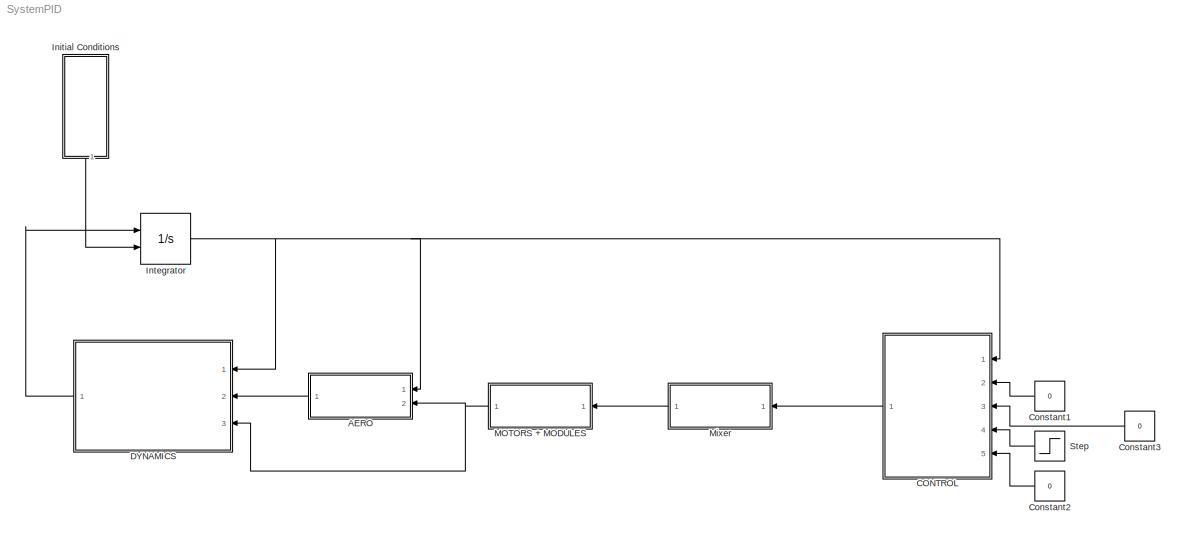
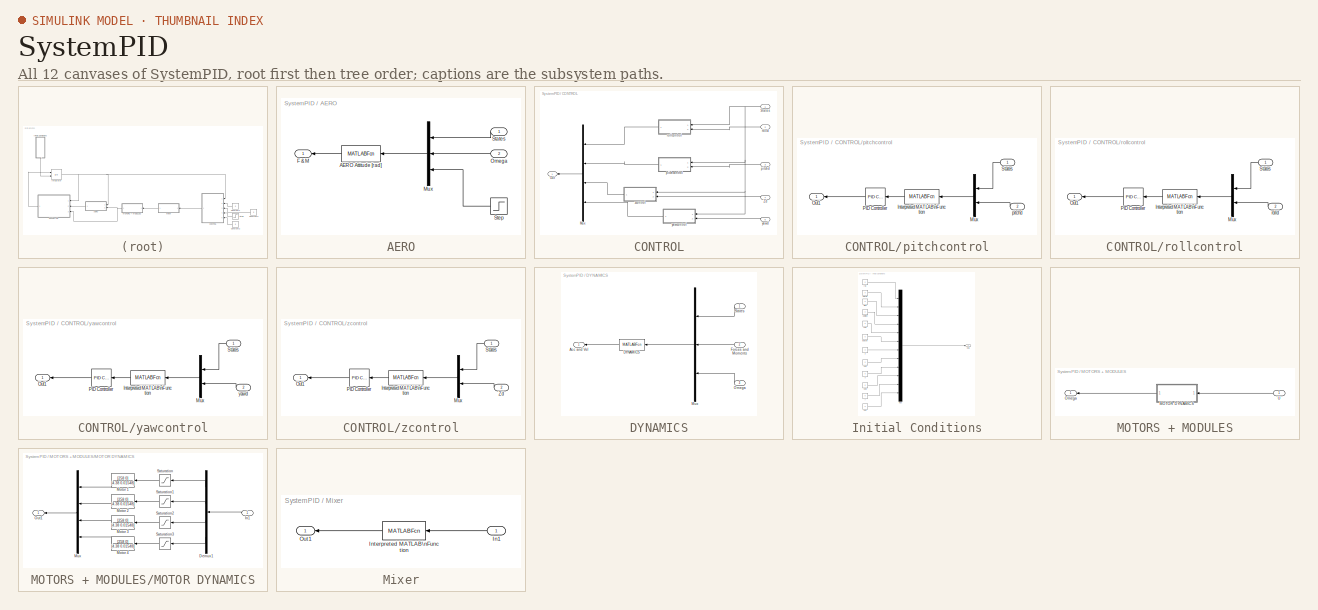
[diagram: thumbnail index - all 12 canvases of the model, root first then tree order]
MODEL SystemPID
KIND model
BLOCK [SubSystem] AERO
  FunctionWithSeparateData = off
  MaskHideContents = off
  MinAlgLoopOccurrences = off
  Opaque = off
  Ports = [2, 1]
  PropExecContextOutsideSubsystem = off
  RTWSystemCode = Auto
  RequestExecContextInheritance = off
  SID = 9
BLOCK [MATLABFcn] AERO/AERO Attitude [rad]
  MATLABFcn = aero
  OutputDimensions = 24
  Ports = [1, 1]
  SID = 17
BLOCK [Outport] AERO/F & M
  IconDisplay = Port number
  SID = 18
BLOCK [Mux] AERO/Mux
  DisplayOption = bar
  Inputs = 3
  Ports = [3, 1]
  SID = 12
BLOCK [Inport] AERO/Omega
  IconDisplay = Port number
  Port = 2
  SID = 14
BLOCK [Inport] AERO/States
  IconDisplay = Port number
  SID = 13
BLOCK [Step] AERO/Step
  SID = 15
  SampleTime = 0
BLOCK [SubSystem] CONTROL
  FunctionWithSeparateData = off
  MaskHideContents = off
  MinAlgLoopOccurrences = off
  Opaque = off
  Ports = [5, 1]
  PropExecContextOutsideSubsystem = off
  RTWSystemCode = Auto
  RequestExecContextInheritance = off
  SID = 29
BLOCK [Mux] CONTROL/Mux
  DisplayOption = bar
  Ports = [4, 1]
  SID = 102
BLOCK [Outport] CONTROL/Out
  IconDisplay = Port number
  SID = 101
BLOCK [Inport] CONTROL/States
  IconDisplay = Port number
  SID = 32
BLOCK [Inport] CONTROL/Zd
  IconDisplay = Port number
  Port = 4
  SID = 35
BLOCK [SubSystem] CONTROL/pitchcontrol
  FunctionWithSeparateData = off
  MaskHideContents = off
  MinAlgLoopOccurrences = off
  Opaque = off
  Ports = [2, 1]
  PropExecContextOutsideSubsystem = off
  RTWSystemCode = Auto
  RequestExecContextInheritance = off
  SID = 80
BLOCK [MATLABFcn] CONTROL/pitchcontrol/Interpreted MATLAB\nFunction
  MATLABFcn = pitcherr
  OutputDimensions = 1
  Ports = [1, 1]
  SID = 83
BLOCK [Mux] CONTROL/pitchcontrol/Mux
  DisplayOption = bar
  Inputs = 2
  Ports = [2, 1]
  SID = 84
BLOCK [Outport] CONTROL/pitchcontrol/Out1
  IconDisplay = Port number
  SID = 86
BLOCK [Reference] CONTROL/pitchcontrol/PID Controller  REF=simulink/Continuous/PID Controller
  AntiWindupMode = none
  Controller = PID
  D = 0
  DOutDataTypeStr = Inherit: Inherit via internal rule
  DOutMax = []
  DOutMin = []
  DParamDataTypeStr = Inherit: Inherit via internal rule
  DParamMax = []
  DParamMin = []
  ExternalReset = none
  FilterContinuousStateAttributes = ''
  FilterMethod = Forward Euler
  FilterOutDataTypeStr = Inherit: Inherit via internal rule
  FilterOutMax = []
  FilterOutMin = []
  FilterRTWStateStorageClass = Auto
  FilterStateMustResolveToSignalObject = off
  Form = Parallel
  FunctionWithSeparateData = off
  GeneratePreprocessorConditionals = off
  I = 1
  IOutDataTypeStr = Inherit: Inherit via internal rule
  IOutMax = []
  IOutMin = []
  IParamDataTypeStr = Inherit: Inherit via internal rule
  IParamMax = []
  IParamMin = []
  IgnoreLimit = off
  InitialConditionForFilter = 0
  InitialConditionForIntegrator = 0
  InitialConditionSource = internal
  IntegratorContinuousStateAttributes = ''
  IntegratorMethod = Forward Euler
  IntegratorOutDataTypeStr = Inherit: Inherit via internal rule
  IntegratorOutMax = []
  IntegratorOutMin = []
  IntegratorRTWStateStorageClass = Auto
  IntegratorStateMustResolveToSignalObject = off
  Kb = 1
  KbOutDataTypeStr = Inherit: Inherit via internal rule
  KbOutMax = []
  KbOutMin = []
  KbParamDataTypeStr = Inherit: Inherit via internal rule
  KbParamMax = []
  KbParamMin = []
  Kt = 1
  KtOutDataTypeStr = Inherit: Inherit via internal rule
  KtOutMax = []
  KtOutMin = []
  KtParamDataTypeStr = Inherit: Inherit via internal rule
  KtParamMax = []
  KtParamMin = []
  LimitOutput = off
  LinearizeAsGain = off
  LockScale = off
  LowerSaturationLimit = -inf
  N = 100
  NOutDataTypeStr = Inherit: Inherit via internal rule
  NOutMax = []
  NOutMin = []
  NParamDataTypeStr = Inherit: Inherit via internal rule
  NParamMax = []
  NParamMin = []
  P = 1
  POutDataTypeStr = Inherit: Inherit via internal rule
  POutMax = []
  POutMin = []
  PParamDataTypeStr = Inherit: Inherit via internal rule
  PParamMax = []
  PParamMin = []
  Ports = [1, 1]
  RTWMemSecDataConstants = Inherit from model
  RTWMemSecDataInternal = Inherit from model
  RTWMemSecDataParameters = Inherit from model
  RTWMemSecFuncExecute = Inherit from model
  RTWMemSecFuncInitTerm = Inherit from model
  RndMeth = Floor
  SID = 85
  SampleTime = 1
  SaturateOnIntegerOverflow = off
  SaturationOutDataTypeStr = Inherit: Same as input
  SaturationOutMax = []
  SaturationOutMin = []
  ShowPortLabels = FromPortIcon
  SourceBlock = simulink/Continuous/PID Controller
  SourceType = PID 1dof
  SumAccumDataTypeStr = Inherit: Inherit via internal rule
  SumDAccumDataTypeStr = Inherit: Inherit via internal rule
  SumDOutDataTypeStr = Inherit: Inherit via internal rule
  SumDOutMax = []
  SumDOutMin = []
  SumI1AccumDataTypeStr = Inherit: Inherit via internal rule
  SumI1OutDataTypeStr = Inherit: Inherit via internal rule
  SumI1OutMax = []
  SumI1OutMin = []
  SumI2AccumDataTypeStr = Inherit: Inherit via internal rule
  SumI2OutDataTypeStr = Inherit: Inherit via internal rule
  SumI2OutMax = []
  SumI2OutMin = []
  SumI3AccumDataTypeStr = Inherit: Inherit via internal rule
  SumI3OutDataTypeStr = Inherit: Inherit via internal rule
  SumI3OutMax = []
  SumI3OutMin = []
  SumOutDataTypeStr = Inherit: Inherit via internal rule
  SumOutMax = []
  SumOutMin = []
  SystemSampleTime = -1
  TimeDomain = Continuous-time
  TrackingMode = off
  UpperSaturationLimit = inf
  ZeroCross = on
BLOCK [Inport] CONTROL/pitchcontrol/States
  IconDisplay = Port number
  SID = 81
BLOCK [Inport] CONTROL/pitchcontrol/pitchd
  IconDisplay = Port number
  Port = 2
  SID = 82
BLOCK [Inport] CONTROL/pitchd
  IconDisplay = Port number
  Port = 3
  SID = 34
BLOCK [SubSystem] CONTROL/rollcontrol
  FunctionWithSeparateData = off
  MaskHideContents = off
  MinAlgLoopOccurrences = off
  Opaque = off
  Ports = [2, 1]
  PropExecContextOutsideSubsystem = off
  RTWSystemCode = Auto
  RequestExecContextInheritance = off
  SID = 73
BLOCK [MATLABFcn] CONTROL/rollcontrol/Interpreted MATLAB\nFunction
  MATLABFcn = rollerr
  OutputDimensions = 1
  Ports = [1, 1]
  SID = 77
BLOCK [Mux] CONTROL/rollcontrol/Mux
  DisplayOption = bar
  Inputs = 2
  Ports = [2, 1]
  SID = 78
BLOCK [Outport] CONTROL/rollcontrol/Out1
  IconDisplay = Port number
  SID = 75
BLOCK [Reference] CONTROL/rollcontrol/PID Controller  REF=simulink/Continuous/PID Controller
  AntiWindupMode = none
  Controller = PID
  D = 0
  DOutDataTypeStr = Inherit: Inherit via internal rule
  DOutMax = []
  DOutMin = []
  DParamDataTypeStr = Inherit: Inherit via internal rule
  DParamMax = []
  DParamMin = []
  ExternalReset = none
  FilterContinuousStateAttributes = ''
  FilterMethod = Forward Euler
  FilterOutDataTypeStr = Inherit: Inherit via internal rule
  FilterOutMax = []
  FilterOutMin = []
  FilterRTWStateStorageClass = Auto
  FilterStateMustResolveToSignalObject = off
  Form = Parallel
  FunctionWithSeparateData = off
  GeneratePreprocessorConditionals = off
  I = 1
  IOutDataTypeStr = Inherit: Inherit via internal rule
  IOutMax = []
  IOutMin = []
  IParamDataTypeStr = Inherit: Inherit via internal rule
  IParamMax = []
  IParamMin = []
  IgnoreLimit = off
  InitialConditionForFilter = 0
  InitialConditionForIntegrator = 0
  InitialConditionSource = internal
  IntegratorContinuousStateAttributes = ''
  IntegratorMethod = Forward Euler
  IntegratorOutDataTypeStr = Inherit: Inherit via internal rule
  IntegratorOutMax = []
  IntegratorOutMin = []
  IntegratorRTWStateStorageClass = Auto
  IntegratorStateMustResolveToSignalObject = off
  Kb = 1
  KbOutDataTypeStr = Inherit: Inherit via internal rule
  KbOutMax = []
  KbOutMin = []
  KbParamDataTypeStr = Inherit: Inherit via internal rule
  KbParamMax = []
  KbParamMin = []
  Kt = 1
  KtOutDataTypeStr = Inherit: Inherit via internal rule
  KtOutMax = []
  KtOutMin = []
  KtParamDataTypeStr = Inherit: Inherit via internal rule
  KtParamMax = []
  KtParamMin = []
  LimitOutput = off
  LinearizeAsGain = off
  LockScale = off
  LowerSaturationLimit = -inf
  N = 100
  NOutDataTypeStr = Inherit: Inherit via internal rule
  NOutMax = []
  NOutMin = []
  NParamDataTypeStr = Inherit: Inherit via internal rule
  NParamMax = []
  NParamMin = []
  P = 1
  POutDataTypeStr = Inherit: Inherit via internal rule
  POutMax = []
  POutMin = []
  PParamDataTypeStr = Inherit: Inherit via internal rule
  PParamMax = []
  PParamMin = []
  Ports = [1, 1]
  RTWMemSecDataConstants = Inherit from model
  RTWMemSecDataInternal = Inherit from model
  RTWMemSecDataParameters = Inherit from model
  RTWMemSecFuncExecute = Inherit from model
  RTWMemSecFuncInitTerm = Inherit from model
  RndMeth = Floor
  SID = 79
  SampleTime = 1
  SaturateOnIntegerOverflow = off
  SaturationOutDataTypeStr = Inherit: Same as input
  SaturationOutMax = []
  SaturationOutMin = []
  ShowPortLabels = FromPortIcon
  SourceBlock = simulink/Continuous/PID Controller
  SourceType = PID 1dof
  SumAccumDataTypeStr = Inherit: Inherit via internal rule
  SumDAccumDataTypeStr = Inherit: Inherit via internal rule
  SumDOutDataTypeStr = Inherit: Inherit via internal rule
  SumDOutMax = []
  SumDOutMin = []
  SumI1AccumDataTypeStr = Inherit: Inherit via internal rule
  SumI1OutDataTypeStr = Inherit: Inherit via internal rule
  SumI1OutMax = []
  SumI1OutMin = []
  SumI2AccumDataTypeStr = Inherit: Inherit via internal rule
  SumI2OutDataTypeStr = Inherit: Inherit via internal rule
  SumI2OutMax = []
  SumI2OutMin = []
  SumI3AccumDataTypeStr = Inherit: Inherit via internal rule
  SumI3OutDataTypeStr = Inherit: Inherit via internal rule
  SumI3OutMax = []
  SumI3OutMin = []
  SumOutDataTypeStr = Inherit: Inherit via internal rule
  SumOutMax = []
  SumOutMin = []
  SystemSampleTime = -1
  TimeDomain = Continuous-time
  TrackingMode = off
  UpperSaturationLimit = inf
  ZeroCross = on
BLOCK [Inport] CONTROL/rollcontrol/States
  IconDisplay = Port number
  SID = 74
BLOCK [Inport] CONTROL/rollcontrol/rolld
  IconDisplay = Port number
  Port = 2
  SID = 76
BLOCK [Inport] CONTROL/rolld
  IconDisplay = Port number
  Port = 2
  SID = 33
BLOCK [SubSystem] CONTROL/yawcontrol
  FunctionWithSeparateData = off
  MaskHideContents = off
  MinAlgLoopOccurrences = off
  Opaque = off
  Ports = [2, 1]
  PropExecContextOutsideSubsystem = off
  RTWSystemCode = Auto
  RequestExecContextInheritance = off
  SID = 87
BLOCK [MATLABFcn] CONTROL/yawcontrol/Interpreted MATLAB\nFunction
  MATLABFcn = yawerr
  OutputDimensions = 1
  Ports = [1, 1]
  SID = 90
BLOCK [Mux] CONTROL/yawcontrol/Mux
  DisplayOption = bar
  Inputs = 2
  Ports = [2, 1]
  SID = 91
BLOCK [Outport] CONTROL/yawcontrol/Out1
  IconDisplay = Port number
  SID = 93
BLOCK [Reference] CONTROL/yawcontrol/PID Controller  REF=simulink/Continuous/PID Controller
  AntiWindupMode = none
  Controller = PID
  D = 0
  DOutDataTypeStr = Inherit: Inherit via internal rule
  DOutMax = []
  DOutMin = []
  DParamDataTypeStr = Inherit: Inherit via internal rule
  DParamMax = []
  DParamMin = []
  ExternalReset = none
  FilterContinuousStateAttributes = ''
  FilterMethod = Forward Euler
  FilterOutDataTypeStr = Inherit: Inherit via internal rule
  FilterOutMax = []
  FilterOutMin = []
  FilterRTWStateStorageClass = Auto
  FilterStateMustResolveToSignalObject = off
  Form = Parallel
  FunctionWithSeparateData = off
  GeneratePreprocessorConditionals = off
  I = 1
  IOutDataTypeStr = Inherit: Inherit via internal rule
  IOutMax = []
  IOutMin = []
  IParamDataTypeStr = Inherit: Inherit via internal rule
  IParamMax = []
  IParamMin = []
  IgnoreLimit = off
  InitialConditionForFilter = 0
  InitialConditionForIntegrator = 0
  InitialConditionSource = internal
  IntegratorContinuousStateAttributes = ''
  IntegratorMethod = Forward Euler
  IntegratorOutDataTypeStr = Inherit: Inherit via internal rule
  IntegratorOutMax = []
  IntegratorOutMin = []
  IntegratorRTWStateStorageClass = Auto
  IntegratorStateMustResolveToSignalObject = off
  Kb = 1
  KbOutDataTypeStr = Inherit: Inherit via internal rule
  KbOutMax = []
  KbOutMin = []
  KbParamDataTypeStr = Inherit: Inherit via internal rule
  KbParamMax = []
  KbParamMin = []
  Kt = 1
  KtOutDataTypeStr = Inherit: Inherit via internal rule
  KtOutMax = []
  KtOutMin = []
  KtParamDataTypeStr = Inherit: Inherit via internal rule
  KtParamMax = []
  KtParamMin = []
  LimitOutput = off
  LinearizeAsGain = off
  LockScale = off
  LowerSaturationLimit = -inf
  N = 100
  NOutDataTypeStr = Inherit: Inherit via internal rule
  NOutMax = []
  NOutMin = []
  NParamDataTypeStr = Inherit: Inherit via internal rule
  NParamMax = []
  NParamMin = []
  P = 1
  POutDataTypeStr = Inherit: Inherit via internal rule
  POutMax = []
  POutMin = []
  PParamDataTypeStr = Inherit: Inherit via internal rule
  PParamMax = []
  PParamMin = []
  Ports = [1, 1]
  RTWMemSecDataConstants = Inherit from model
  RTWMemSecDataInternal = Inherit from model
  RTWMemSecDataParameters = Inherit from model
  RTWMemSecFuncExecute = Inherit from model
  RTWMemSecFuncInitTerm = Inherit from model
  RndMeth = Floor
  SID = 92
  SampleTime = 1
  SaturateOnIntegerOverflow = off
  SaturationOutDataTypeStr = Inherit: Same as input
  SaturationOutMax = []
  SaturationOutMin = []
  ShowPortLabels = FromPortIcon
  SourceBlock = simulink/Continuous/PID Controller
  SourceType = PID 1dof
  SumAccumDataTypeStr = Inherit: Inherit via internal rule
  SumDAccumDataTypeStr = Inherit: Inherit via internal rule
  SumDOutDataTypeStr = Inherit: Inherit via internal rule
  SumDOutMax = []
  SumDOutMin = []
  SumI1AccumDataTypeStr = Inherit: Inherit via internal rule
  SumI1OutDataTypeStr = Inherit: Inherit via internal rule
  SumI1OutMax = []
  SumI1OutMin = []
  SumI2AccumDataTypeStr = Inherit: Inherit via internal rule
  SumI2OutDataTypeStr = Inherit: Inherit via internal rule
  SumI2OutMax = []
  SumI2OutMin = []
  SumI3AccumDataTypeStr = Inherit: Inherit via internal rule
  SumI3OutDataTypeStr = Inherit: Inherit via internal rule
  SumI3OutMax = []
  SumI3OutMin = []
  SumOutDataTypeStr = Inherit: Inherit via internal rule
  SumOutMax = []
  SumOutMin = []
  SystemSampleTime = -1
  TimeDomain = Continuous-time
  TrackingMode = off
  UpperSaturationLimit = inf
  ZeroCross = on
BLOCK [Inport] CONTROL/yawcontrol/States
  IconDisplay = Port number
  SID = 88
BLOCK [Inport] CONTROL/yawcontrol/yawd
  IconDisplay = Port number
  Port = 2
  SID = 89
BLOCK [Inport] CONTROL/yawd
  IconDisplay = Port number
  Port = 5
  SID = 36
BLOCK [SubSystem] CONTROL/zcontrol
  FunctionWithSeparateData = off
  MaskHideContents = off
  MinAlgLoopOccurrences = off
  Opaque = off
  Ports = [2, 1]
  PropExecContextOutsideSubsystem = off
  RTWSystemCode = Auto
  RequestExecContextInheritance = off
  SID = 94
BLOCK [MATLABFcn] CONTROL/zcontrol/Interpreted MATLAB\nFunction
  MATLABFcn = zerr
  OutputDimensions = 1
  Ports = [1, 1]
  SID = 97
BLOCK [Mux] CONTROL/zcontrol/Mux
  DisplayOption = bar
  Inputs = 2
  Ports = [2, 1]
  SID = 98
BLOCK [Outport] CONTROL/zcontrol/Out1
  IconDisplay = Port number
  SID = 100
BLOCK [Reference] CONTROL/zcontrol/PID Controller  REF=simulink/Continuous/PID Controller
  AntiWindupMode = none
  Controller = PID
  D = 0
  DOutDataTypeStr = Inherit: Inherit via internal rule
  DOutMax = []
  DOutMin = []
  DParamDataTypeStr = Inherit: Inherit via internal rule
  DParamMax = []
  DParamMin = []
  ExternalReset = none
  FilterContinuousStateAttributes = ''
  FilterMethod = Forward Euler
  FilterOutDataTypeStr = Inherit: Inherit via internal rule
  FilterOutMax = []
  FilterOutMin = []
  FilterRTWStateStorageClass = Auto
  FilterStateMustResolveToSignalObject = off
  Form = Parallel
  FunctionWithSeparateData = off
  GeneratePreprocessorConditionals = off
  I = 1
  IOutDataTypeStr = Inherit: Inherit via internal rule
  IOutMax = []
  IOutMin = []
  IParamDataTypeStr = Inherit: Inherit via internal rule
  IParamMax = []
  IParamMin = []
  IgnoreLimit = off
  InitialConditionForFilter = 0
  InitialConditionForIntegrator = 0
  InitialConditionSource = internal
  IntegratorContinuousStateAttributes = ''
  IntegratorMethod = Forward Euler
  IntegratorOutDataTypeStr = Inherit: Inherit via internal rule
  IntegratorOutMax = []
  IntegratorOutMin = []
  IntegratorRTWStateStorageClass = Auto
  IntegratorStateMustResolveToSignalObject = off
  Kb = 1
  KbOutDataTypeStr = Inherit: Inherit via internal rule
  KbOutMax = []
  KbOutMin = []
  KbParamDataTypeStr = Inherit: Inherit via internal rule
  KbParamMax = []
  KbParamMin = []
  Kt = 1
  KtOutDataTypeStr = Inherit: Inherit via internal rule
  KtOutMax = []
  KtOutMin = []
  KtParamDataTypeStr = Inherit: Inherit via internal rule
  KtParamMax = []
  KtParamMin = []
  LimitOutput = off
  LinearizeAsGain = off
  LockScale = off
  LowerSaturationLimit = -inf
  N = 100
  NOutDataTypeStr = Inherit: Inherit via internal rule
  NOutMax = []
  NOutMin = []
  NParamDataTypeStr = Inherit: Inherit via internal rule
  NParamMax = []
  NParamMin = []
  P = 1
  POutDataTypeStr = Inherit: Inherit via internal rule
  POutMax = []
  POutMin = []
  PParamDataTypeStr = Inherit: Inherit via internal rule
  PParamMax = []
  PParamMin = []
  Ports = [1, 1]
  RTWMemSecDataConstants = Inherit from model
  RTWMemSecDataInternal = Inherit from model
  RTWMemSecDataParameters = Inherit from model
  RTWMemSecFuncExecute = Inherit from model
  RTWMemSecFuncInitTerm = Inherit from model
  RndMeth = Floor
  SID = 99
  SampleTime = 1
  SaturateOnIntegerOverflow = off
  SaturationOutDataTypeStr = Inherit: Same as input
  SaturationOutMax = []
  SaturationOutMin = []
  ShowPortLabels = FromPortIcon
  SourceBlock = simulink/Continuous/PID Controller
  SourceType = PID 1dof
  SumAccumDataTypeStr = Inherit: Inherit via internal rule
  SumDAccumDataTypeStr = Inherit: Inherit via internal rule
  SumDOutDataTypeStr = Inherit: Inherit via internal rule
  SumDOutMax = []
  SumDOutMin = []
  SumI1AccumDataTypeStr = Inherit: Inherit via internal rule
  SumI1OutDataTypeStr = Inherit: Inherit via internal rule
  SumI1OutMax = []
  SumI1OutMin = []
  SumI2AccumDataTypeStr = Inherit: Inherit via internal rule
  SumI2OutDataTypeStr = Inherit: Inherit via internal rule
  SumI2OutMax = []
  SumI2OutMin = []
  SumI3AccumDataTypeStr = Inherit: Inherit via internal rule
  SumI3OutDataTypeStr = Inherit: Inherit via internal rule
  SumI3OutMax = []
  SumI3OutMin = []
  SumOutDataTypeStr = Inherit: Inherit via internal rule
  SumOutMax = []
  SumOutMin = []
  SystemSampleTime = -1
  TimeDomain = Continuous-time
  TrackingMode = off
  UpperSaturationLimit = inf
  ZeroCross = on
BLOCK [Inport] CONTROL/zcontrol/States
  IconDisplay = Port number
  SID = 95
BLOCK [Inport] CONTROL/zcontrol/Zd
  IconDisplay = Port number
  Port = 2
  SID = 96
BLOCK [Constant] Constant1
  SID = 40
  Value = 0
BLOCK [Constant] Constant2
  SID = 41
  Value = 0
BLOCK [Constant] Constant3
  SID = 42
  Value = 0
BLOCK [SubSystem] DYNAMICS
  FunctionWithSeparateData = off
  MaskHideContents = off
  MinAlgLoopOccurrences = off
  Opaque = off
  Ports = [3, 1]
  PropExecContextOutsideSubsystem = off
  RTWSystemCode = Auto
  RequestExecContextInheritance = off
  SID = 1
BLOCK [Outport] DYNAMICS/Acc and Vel
  IconDisplay = Port number
  SID = 3
BLOCK [MATLABFcn] DYNAMICS/DYNAMICS
  MATLABFcn = plantdynamics
  OutputDimensions = 18
  Ports = [1, 1]
  SID = 8
BLOCK [Inport] DYNAMICS/Forces and Moments
  IconDisplay = Port number
  Port = 2
  SID = 6
BLOCK [Mux] DYNAMICS/Mux
  DisplayOption = bar
  Inputs = 3
  Ports = [3, 1]
  SID = 4
BLOCK [Inport] DYNAMICS/Omega
  IconDisplay = Port number
  Port = 3
  SID = 7
BLOCK [Inport] DYNAMICS/States
  IconDisplay = Port number
  SID = 5
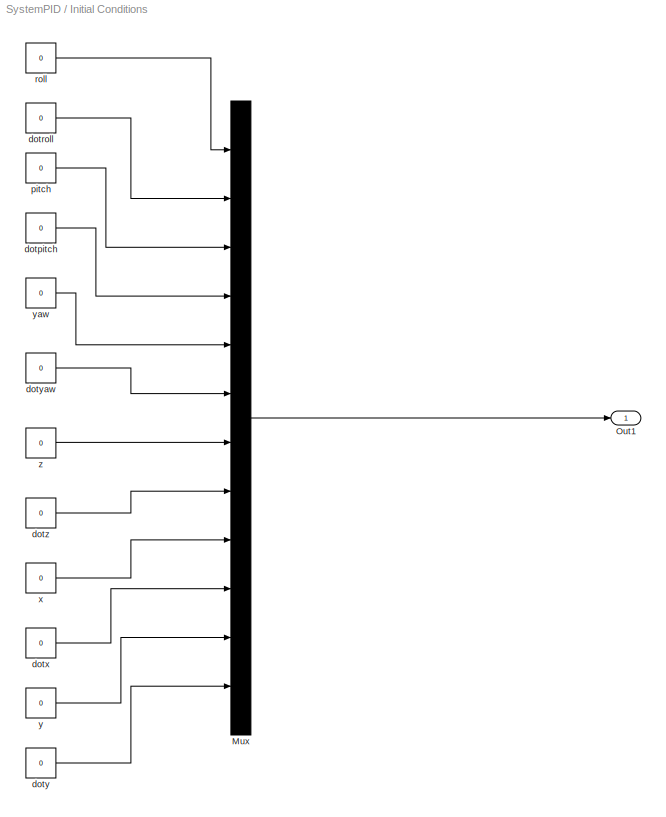
BLOCK [SubSystem] Initial Conditions
  FunctionWithSeparateData = off
  MaskHideContents = off
  MinAlgLoopOccurrences = off
  Opaque = off
  Ports = [0, 1]
  PropExecContextOutsideSubsystem = off
  RTWSystemCode = Auto
  RequestExecContextInheritance = off
  SID = 45
BLOCK [Mux] Initial Conditions/Mux
  DisplayOption = bar
  Inputs = 12
  Ports = [12, 1]
  SID = 48
BLOCK [Outport] Initial Conditions/Out1
  IconDisplay = Port number
  SID = 47
BLOCK [Constant] Initial Conditions/dotpitch
  SID = 53
  Value = 0
BLOCK [Constant] Initial Conditions/dotroll
  SID = 51
  Value = 0
BLOCK [Constant] Initial Conditions/dotx
  SID = 59
  Value = 0
BLOCK [Constant] Initial Conditions/doty
  SID = 50
  Value = 0
BLOCK [Constant] Initial Conditions/dotyaw
  SID = 55
  Value = 0
BLOCK [Constant] Initial Conditions/dotz
  SID = 57
  Value = 0
BLOCK [Constant] Initial Conditions/pitch
  SID = 52
  Value = 0
BLOCK [Constant] Initial Conditions/roll
  SID = 49
  Value = 0
BLOCK [Constant] Initial Conditions/x
  SID = 58
  Value = 0
BLOCK [Constant] Initial Conditions/y
  SID = 60
  Value = 0
BLOCK [Constant] Initial Conditions/yaw
  SID = 54
  Value = 0
BLOCK [Constant] Initial Conditions/z
  SID = 56
  Value = 0
BLOCK [Integrator] Integrator
  InitialConditionSource = external
  Ports = [2, 1]
  SID = 44
BLOCK [SubSystem] MOTORS + MODULES
  FunctionWithSeparateData = off
  MaskHideContents = off
  MinAlgLoopOccurrences = off
  Opaque = off
  Ports = [1, 1]
  PropExecContextOutsideSubsystem = off
  RTWSystemCode = Auto
  RequestExecContextInheritance = off
  SID = 19
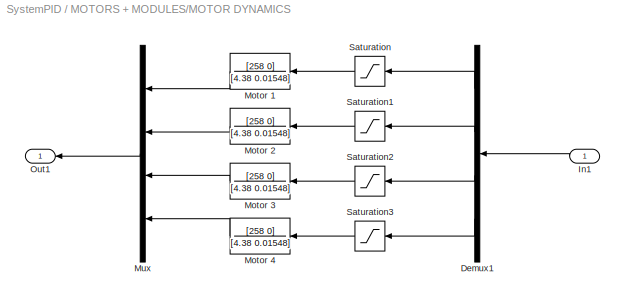
BLOCK [SubSystem] MOTORS + MODULES/MOTOR DYNAMICS
  FunctionWithSeparateData = off
  MaskHideContents = off
  MinAlgLoopOccurrences = off
  Opaque = off
  Ports = [1, 1]
  PropExecContextOutsideSubsystem = off
  RTWSystemCode = Auto
  RequestExecContextInheritance = off
  SID = 24
BLOCK [Demux] MOTORS + MODULES/MOTOR DYNAMICS/Demux1
  Ports = [1, 4]
  SID = 62
BLOCK [Inport] MOTORS + MODULES/MOTOR DYNAMICS/In1
  IconDisplay = Port number
  SID = 61
BLOCK [TransferFcn] MOTORS + MODULES/MOTOR DYNAMICS/Motor 1
  Denominator = [4.38 0.01548]
  Numerator = [258 0]
  SID = 63
BLOCK [TransferFcn] MOTORS + MODULES/MOTOR DYNAMICS/Motor 2
  Denominator = [4.38 0.01548]
  Numerator = [258 0]
  SID = 64
BLOCK [TransferFcn] MOTORS + MODULES/MOTOR DYNAMICS/Motor 3
  Denominator = [4.38 0.01548]
  Numerator = [258 0]
  SID = 65
BLOCK [TransferFcn] MOTORS + MODULES/MOTOR DYNAMICS/Motor 4
  Denominator = [4.38 0.01548]
  Numerator = [258 0]
  SID = 66
BLOCK [Mux] MOTORS + MODULES/MOTOR DYNAMICS/Mux
  DisplayOption = bar
  Ports = [4, 1]
  SID = 67
BLOCK [Outport] MOTORS + MODULES/MOTOR DYNAMICS/Out1
  IconDisplay = Port number
  SID = 72
BLOCK [Saturate] MOTORS + MODULES/MOTOR DYNAMICS/Saturation
  InputPortMap = u0
  LowerLimit = 0
  Ports = [1, 1]
  SID = 68
  UpperLimit = 250
BLOCK [Saturate] MOTORS + MODULES/MOTOR DYNAMICS/Saturation1
  InputPortMap = u0
  LowerLimit = 0
  Ports = [1, 1]
  SID = 69
  UpperLimit = 250
BLOCK [Saturate] MOTORS + MODULES/MOTOR DYNAMICS/Saturation2
  InputPortMap = u0
  LowerLimit = 0
  Ports = [1, 1]
  SID = 70
  UpperLimit = 250
BLOCK [Saturate] MOTORS + MODULES/MOTOR DYNAMICS/Saturation3
  InputPortMap = u0
  LowerLimit = 0
  Ports = [1, 1]
  SID = 71
  UpperLimit = 250
BLOCK [Outport] MOTORS + MODULES/Omega
  IconDisplay = Port number
  SID = 28
BLOCK [Inport] MOTORS + MODULES/U
  IconDisplay = Port number
  SID = 22
BLOCK [SubSystem] Mixer
  FunctionWithSeparateData = off
  MaskHideContents = off
  MinAlgLoopOccurrences = off
  Opaque = off
  Ports = [1, 1]
  PropExecContextOutsideSubsystem = off
  RTWSystemCode = Auto
  RequestExecContextInheritance = off
  SID = 103
BLOCK [Inport] Mixer/In1
  IconDisplay = Port number
  SID = 104
BLOCK [MATLABFcn] Mixer/Interpreted MATLAB\nFunction
  MATLABFcn = mix
  OutputDimensions = 4
  Ports = [1, 1]
  SID = 106
BLOCK [Outport] Mixer/Out1
  IconDisplay = Port number
  SID = 105
BLOCK [Step] Step
  SID = 43
  SampleTime = 0
LINE AERO/AERO Attitude [rad]:1 -> AERO/F & M:1
LINE AERO/Mux:1 -> AERO/AERO Attitude [rad]:1
LINE AERO/Omega:1 -> AERO/Mux:2
LINE AERO/States:1 -> AERO/Mux:1
LINE AERO/Step:1 -> AERO/Mux:3
LINE AERO:1 -> DYNAMICS:2
LINE CONTROL/Mux:1 -> CONTROL/Out:1
NET CONTROL/States:1 -> CONTROL/pitchcontrol:1, CONTROL/rollcontrol:1, CONTROL/yawcontrol:1, CONTROL/zcontrol:1
LINE CONTROL/Zd:1 -> CONTROL/zcontrol:2
LINE CONTROL/pitchcontrol/Interpreted MATLAB\nFunction:1 -> CONTROL/pitchcontrol/PID Controller:1
LINE CONTROL/pitchcontrol/Mux:1 -> CONTROL/pitchcontrol/Interpreted MATLAB\nFunction:1
LINE CONTROL/pitchcontrol/PID Controller:1 -> CONTROL/pitchcontrol/Out1:1
LINE CONTROL/pitchcontrol/States:1 -> CONTROL/pitchcontrol/Mux:1
LINE CONTROL/pitchcontrol/pitchd:1 -> CONTROL/pitchcontrol/Mux:2
LINE CONTROL/pitchcontrol:1 -> CONTROL/Mux:2
LINE CONTROL/pitchd:1 -> CONTROL/pitchcontrol:2
LINE CONTROL/rollcontrol/Interpreted MATLAB\nFunction:1 -> CONTROL/rollcontrol/PID Controller:1
LINE CONTROL/rollcontrol/Mux:1 -> CONTROL/rollcontrol/Interpreted MATLAB\nFunction:1
LINE CONTROL/rollcontrol/PID Controller:1 -> CONTROL/rollcontrol/Out1:1
LINE CONTROL/rollcontrol/States:1 -> CONTROL/rollcontrol/Mux:1
LINE CONTROL/rollcontrol/rolld:1 -> CONTROL/rollcontrol/Mux:2
LINE CONTROL/rollcontrol:1 -> CONTROL/Mux:1
LINE CONTROL/rolld:1 -> CONTROL/rollcontrol:2
LINE CONTROL/yawcontrol/Interpreted MATLAB\nFunction:1 -> CONTROL/yawcontrol/PID Controller:1
LINE CONTROL/yawcontrol/Mux:1 -> CONTROL/yawcontrol/Interpreted MATLAB\nFunction:1
LINE CONTROL/yawcontrol/PID Controller:1 -> CONTROL/yawcontrol/Out1:1
LINE CONTROL/yawcontrol/States:1 -> CONTROL/yawcontrol/Mux:1
LINE CONTROL/yawcontrol/yawd:1 -> CONTROL/yawcontrol/Mux:2
LINE CONTROL/yawcontrol:1 -> CONTROL/Mux:4
LINE CONTROL/yawd:1 -> CONTROL/yawcontrol:2
LINE CONTROL/zcontrol/Interpreted MATLAB\nFunction:1 -> CONTROL/zcontrol/PID Controller:1
LINE CONTROL/zcontrol/Mux:1 -> CONTROL/zcontrol/Interpreted MATLAB\nFunction:1
LINE CONTROL/zcontrol/PID Controller:1 -> CONTROL/zcontrol/Out1:1
LINE CONTROL/zcontrol/States:1 -> CONTROL/zcontrol/Mux:1
LINE CONTROL/zcontrol/Zd:1 -> CONTROL/zcontrol/Mux:2
LINE CONTROL/zcontrol:1 -> CONTROL/Mux:3
LINE CONTROL:1 -> Mixer:1
LINE Constant1:1 -> CONTROL:2
LINE Constant2:1 -> CONTROL:5
LINE Constant3:1 -> CONTROL:3
LINE DYNAMICS/DYNAMICS:1 -> DYNAMICS/Acc and Vel:1
LINE DYNAMICS/Forces and Moments:1 -> DYNAMICS/Mux:2
LINE DYNAMICS/Mux:1 -> DYNAMICS/DYNAMICS:1
LINE DYNAMICS/Omega:1 -> DYNAMICS/Mux:3
LINE DYNAMICS/States:1 -> DYNAMICS/Mux:1
LINE DYNAMICS:1 -> Integrator:1
LINE Initial Conditions/Mux:1 -> Initial Conditions/Out1:1
LINE Initial Conditions/dotpitch:1 -> Initial Conditions/Mux:4
LINE Initial Conditions/dotroll:1 -> Initial Conditions/Mux:2
LINE Initial Conditions/dotx:1 -> Initial Conditions/Mux:10
LINE Initial Conditions/doty:1 -> Initial Conditions/Mux:12
LINE Initial Conditions/dotyaw:1 -> Initial Conditions/Mux:6
LINE Initial Conditions/dotz:1 -> Initial Conditions/Mux:8
LINE Initial Conditions/pitch:1 -> Initial Conditions/Mux:3
LINE Initial Conditions/roll:1 -> Initial Conditions/Mux:1
LINE Initial Conditions/x:1 -> Initial Conditions/Mux:9
LINE Initial Conditions/y:1 -> Initial Conditions/Mux:11
LINE Initial Conditions/yaw:1 -> Initial Conditions/Mux:5
LINE Initial Conditions/z:1 -> Initial Conditions/Mux:7
LINE Initial Conditions:1 -> Integrator:2
NET Integrator:1 -> AERO:1, CONTROL:1, DYNAMICS:1
LINE MOTORS + MODULES/MOTOR DYNAMICS/Demux1:1 -> MOTORS + MODULES/MOTOR DYNAMICS/Saturation:1
LINE MOTORS + MODULES/MOTOR DYNAMICS/Demux1:2 -> MOTORS + MODULES/MOTOR DYNAMICS/Saturation1:1
LINE MOTORS + MODULES/MOTOR DYNAMICS/Demux1:3 -> MOTORS + MODULES/MOTOR DYNAMICS/Saturation2:1
LINE MOTORS + MODULES/MOTOR DYNAMICS/Demux1:4 -> MOTORS + MODULES/MOTOR DYNAMICS/Saturation3:1
LINE MOTORS + MODULES/MOTOR DYNAMICS/In1:1 -> MOTORS + MODULES/MOTOR DYNAMICS/Demux1:1
LINE MOTORS + MODULES/MOTOR DYNAMICS/Motor 1:1 -> MOTORS + MODULES/MOTOR DYNAMICS/Mux:1
LINE MOTORS + MODULES/MOTOR DYNAMICS/Motor 2:1 -> MOTORS + MODULES/MOTOR DYNAMICS/Mux:2
LINE MOTORS + MODULES/MOTOR DYNAMICS/Motor 3:1 -> MOTORS + MODULES/MOTOR DYNAMICS/Mux:3
LINE MOTORS + MODULES/MOTOR DYNAMICS/Motor 4:1 -> MOTORS + MODULES/MOTOR DYNAMICS/Mux:4
LINE MOTORS + MODULES/MOTOR DYNAMICS/Mux:1 -> MOTORS + MODULES/MOTOR DYNAMICS/Out1:1
LINE MOTORS + MODULES/MOTOR DYNAMICS/Saturation1:1 -> MOTORS + MODULES/MOTOR DYNAMICS/Motor 2:1
LINE MOTORS + MODULES/MOTOR DYNAMICS/Saturation2:1 -> MOTORS + MODULES/MOTOR DYNAMICS/Motor 3:1
LINE MOTORS + MODULES/MOTOR DYNAMICS/Saturation3:1 -> MOTORS + MODULES/MOTOR DYNAMICS/Motor 4:1
LINE MOTORS + MODULES/MOTOR DYNAMICS/Saturation:1 -> MOTORS + MODULES/MOTOR DYNAMICS/Motor 1:1
LINE MOTORS + MODULES/MOTOR DYNAMICS:1 -> MOTORS + MODULES/Omega:1
LINE MOTORS + MODULES/U:1 -> MOTORS + MODULES/MOTOR DYNAMICS:1
NET MOTORS + MODULES:1 -> AERO:2, DYNAMICS:3
LINE Mixer/In1:1 -> Mixer/Interpreted MATLAB\nFunction:1
LINE Mixer/Interpreted MATLAB\nFunction:1 -> Mixer/Out1:1
LINE Mixer:1 -> MOTORS + MODULES:1
LINE Step:1 -> CONTROL:4
note: NET lines group one-source signal fan-out (src -> all destinations, sorted); 1:1 wires keep LINE
